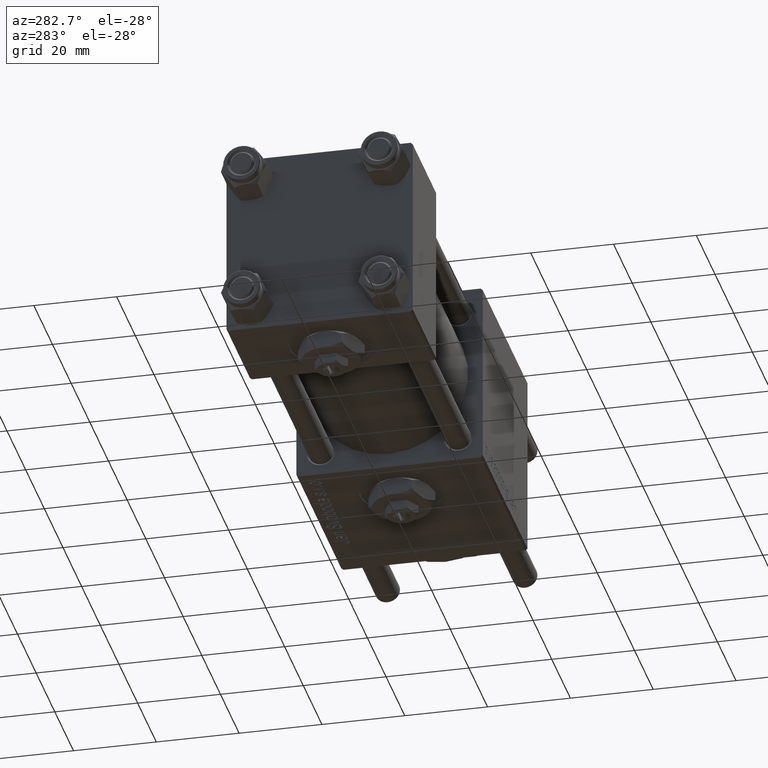
[diagram: clean part render]
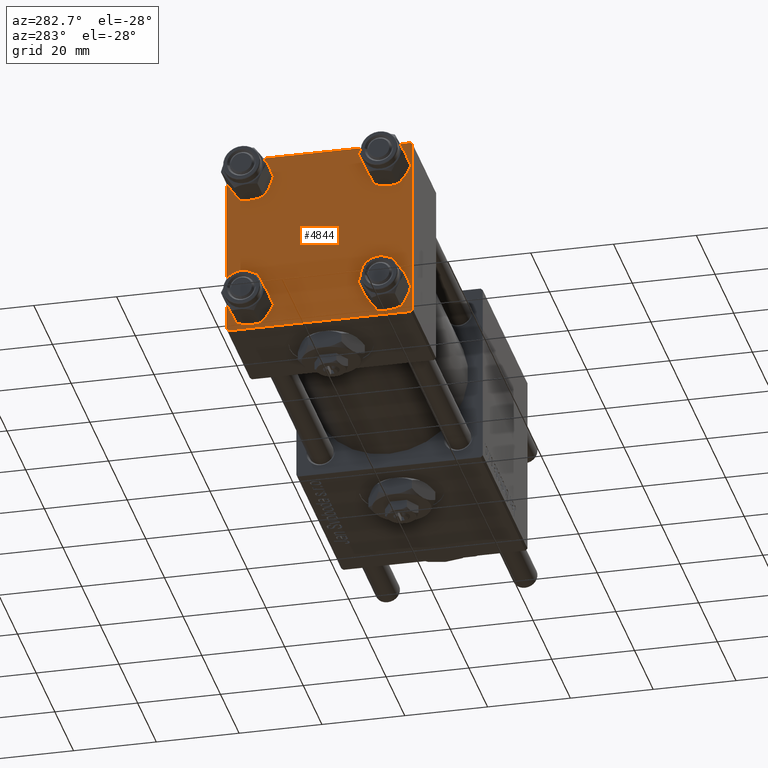
[diagram: same view with one face highlighted and labeled with its STEP entity id]
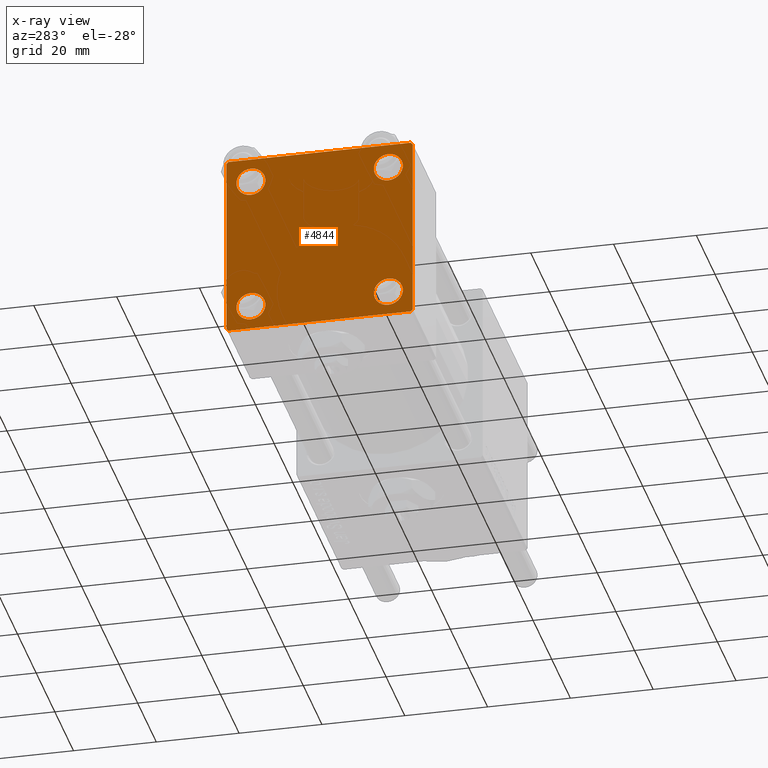
[diagram: x-ray of the same camera — body ghosted, the highlighted face saturated]
A machine part, auxiliary view. The second image highlights one B-rep face of the part: STEP entity #4844.
The next image is the same camera in x-ray: the body ghosted, the highlighted face saturated — about 0% of this face is hidden behind the body in this view.
In plain terms, the highlighted planar face has unit normal (-1, 0, 0).
Its self-contained STEP definition (entity closure, byte-faithful):
#525 = VECTOR ( 'NONE', #51035, 1000.000000000000000 ) ;
#651 = CARTESIAN_POINT ( 'NONE',  ( 0.000000000000000000, 21.99999999999999289, -22.49999999999999645 ) ) ;
#687 = CARTESIAN_POINT ( 'NONE',  ( 0.000000000000000000, 21.99999999999999289, 22.50000000000000355 ) ) ;
#1084 = VERTEX_POINT ( 'NONE', #32262 ) ;
#1396 = CARTESIAN_POINT ( 'NONE',  ( 0.000000000000000000, 22.50000000000000000, 21.99999999999999645 ) ) ;
#1397 = VECTOR ( 'NONE', #4981, 1000.000000000000000 ) ;
#1418 = ORIENTED_EDGE ( 'NONE', *, *, #38403, .F. ) ;
#1971 = VECTOR ( 'NONE', #26684, 1000.000000000000114 ) ;
#2387 = DIRECTION ( 'NONE',  ( 0.000000000000000000, -0.7071067811865426878, 0.7071067811865524577 ) ) ;
#2950 = DIRECTION ( 'NONE',  ( 1.000000000000000000, -0.000000000000000000, 0.000000000000000000 ) ) ;
#3062 = DIRECTION ( 'NONE',  ( 1.000000000000000000, -0.000000000000000000, 0.000000000000000000 ) ) ;
#3696 = ORIENTED_EDGE ( 'NONE', *, *, #21230, .T. ) ;
#3710 = CARTESIAN_POINT ( 'NONE',  ( 0.000000000000000000, 22.50000000000000000, -21.99999999999996803 ) ) ;
#4570 = DIRECTION ( 'NONE',  ( 1.000000000000000000, -0.000000000000000000, 0.000000000000000000 ) ) ;
#4844 = ADVANCED_FACE ( 'NONE', ( #7138, #39537, #26425, #38663, #8008 ), #57113, .T. ) ;
#4902 = EDGE_CURVE ( 'NONE', #49674, #58746, #52650, .T. ) ;
#4981 = DIRECTION ( 'NONE',  ( 0.000000000000000000, 0.000000000000000000, -1.000000000000000000 ) ) ;
#5177 = EDGE_LOOP ( 'NONE', ( #49612, #55496 ) ) ;
#5236 = CARTESIAN_POINT ( 'NONE',  ( 0.000000000000000000, 22.50000000000000000, 22.50000000000000355 ) ) ;
#5449 = VECTOR ( 'NONE', #29704, 1000.000000000000000 ) ;
#6813 = EDGE_CURVE ( 'NONE', #20612, #49674, #37069, .T. ) ;
#7138 = FACE_BOUND ( 'NONE', #18347, .T. ) ;
#7297 = LINE ( 'NONE', #25422, #55432 ) ;
#7694 = CARTESIAN_POINT ( 'NONE',  ( 0.000000000000000000, 16.59999999999999787, 16.60000000000000497 ) ) ;
#8008 = FACE_OUTER_BOUND ( 'NONE', #52908, .T. ) ;
#10006 = DIRECTION ( 'NONE',  ( 0.000000000000000000, -1.000000000000000000, -2.312964634635742957E-16 ) ) ;
#11111 = AXIS2_PLACEMENT_3D ( 'NONE', #7694, #2950, #30290 ) ;
#11423 = CARTESIAN_POINT ( 'NONE',  ( 0.000000000000000000, -16.59999999999999076, 16.60000000000000853 ) ) ;
#11575 = LINE ( 'NONE', #21070, #5449 ) ;
#11682 = ORIENTED_EDGE ( 'NONE', *, *, #4902, .T. ) ;
#12722 = CARTESIAN_POINT ( 'NONE',  ( 0.000000000000000000, 22.24999999999999645, 22.24999999999999645 ) ) ;
#12912 = AXIS2_PLACEMENT_3D ( 'NONE', #11423, #33425, #24500 ) ;
#12926 = ORIENTED_EDGE ( 'NONE', *, *, #6813, .T. ) ;
#13475 = LINE ( 'NONE', #23266, #42289 ) ;
#13598 = LINE ( 'NONE', #12722, #1971 ) ;
#15344 = CARTESIAN_POINT ( 'NONE',  ( 0.000000000000000000, 22.50000000000000000, -22.49999999999999645 ) ) ;
#16117 = AXIS2_PLACEMENT_3D ( 'NONE', #52741, #3062, #22062 ) ;
#16576 = VERTEX_POINT ( 'NONE', #56293 ) ;
#16873 = VERTEX_POINT ( 'NONE', #43999 ) ;
#18347 = EDGE_LOOP ( 'NONE', ( #24317, #32161 ) ) ;
#18355 = VERTEX_POINT ( 'NONE', #3710 ) ;
#18745 = EDGE_CURVE ( 'NONE', #50341, #54932, #34191, .T. ) ;
#19090 = DIRECTION ( 'NONE',  ( 0.000000000000000000, 0.000000000000000000, 1.000000000000000000 ) ) ;
#19420 = AXIS2_PLACEMENT_3D ( 'NONE', #21670, #57401, #34772 ) ;
#20225 = CARTESIAN_POINT ( 'NONE',  ( 0.000000000000000000, -16.59999999999999076, 16.60000000000000853 ) ) ;
#20612 = VERTEX_POINT ( 'NONE', #651 ) ;
#21046 = EDGE_CURVE ( 'NONE', #52537, #39398, #13598, .T. ) ;
#21070 = CARTESIAN_POINT ( 'NONE',  ( 0.000000000000000000, 22.50000000000000000, 22.50000000000000355 ) ) ;
#21112 = VERTEX_POINT ( 'NONE', #23976 ) ;
#21230 = EDGE_CURVE ( 'NONE', #41102, #1084, #28533, .T. ) ;
#21670 = CARTESIAN_POINT ( 'NONE',  ( 0.000000000000000000, 0.000000000000000000, 0.000000000000000000 ) ) ;
#22062 = DIRECTION ( 'NONE',  ( 0.000000000000000000, 0.000000000000000000, 1.000000000000000000 ) ) ;
#22160 = DIRECTION ( 'NONE',  ( 1.000000000000000000, -0.000000000000000000, 0.000000000000000000 ) ) ;
#22514 = CARTESIAN_POINT ( 'NONE',  ( 0.000000000000000000, 16.59999999999999787, 20.10000000000000142 ) ) ;
#22772 = ORIENTED_EDGE ( 'NONE', *, *, #21046, .T. ) ;
#23266 = CARTESIAN_POINT ( 'NONE',  ( 0.000000000000000000, 22.25000000000014566, -22.24999999999984013 ) ) ;
#23976 = CARTESIAN_POINT ( 'NONE',  ( 0.000000000000000000, -16.59999999999999076, 20.10000000000000853 ) ) ;
#24178 = VECTOR ( 'NONE', #2387, 1000.000000000000000 ) ;
#24317 = ORIENTED_EDGE ( 'NONE', *, *, #42295, .T. ) ;
#24381 = CIRCLE ( 'NONE', #11111, 3.499999999999996003 ) ;
#24500 = DIRECTION ( 'NONE',  ( 0.000000000000000000, 0.000000000000000000, 1.000000000000000000 ) ) ;
#24770 = AXIS2_PLACEMENT_3D ( 'NONE', #40617, #22160, #30792 ) ;
#25422 = CARTESIAN_POINT ( 'NONE',  ( -0.000000000000000000, -22.24999999999984013, 22.25000000000015277 ) ) ;
#25502 = EDGE_CURVE ( 'NONE', #39793, #26314, #36272, .T. ) ;
#26016 = VERTEX_POINT ( 'NONE', #28338 ) ;
#26314 = VERTEX_POINT ( 'NONE', #46354 ) ;
#26425 = FACE_BOUND ( 'NONE', #49299, .T. ) ;
#26684 = DIRECTION ( 'NONE',  ( 0.000000000000000000, 0.7071067811865474617, -0.7071067811865474617 ) ) ;
#27241 = EDGE_LOOP ( 'NONE', ( #3696, #32067 ) ) ;
#27884 = AXIS2_PLACEMENT_3D ( 'NONE', #32492, #45605, #19090 ) ;
#27918 = ORIENTED_EDGE ( 'NONE', *, *, #55477, .T. ) ;
#28338 = CARTESIAN_POINT ( 'NONE',  ( 0.000000000000000000, -21.99999999999997868, 22.50000000000000000 ) ) ;
#28408 = LINE ( 'NONE', #5236, #525 ) ;
#28533 = CIRCLE ( 'NONE', #24770, 3.499999999999996003 ) ;
#29364 = DIRECTION ( 'NONE',  ( 1.000000000000000000, -0.000000000000000000, 0.000000000000000000 ) ) ;
#29460 = EDGE_CURVE ( 'NONE', #16873, #26016, #7297, .T. ) ;
#29704 = DIRECTION ( 'NONE',  ( 0.000000000000000000, 0.000000000000000000, -1.000000000000000000 ) ) ;
#30290 = DIRECTION ( 'NONE',  ( 0.000000000000000000, 0.000000000000000000, 1.000000000000000000 ) ) ;
#30792 = DIRECTION ( 'NONE',  ( 0.000000000000000000, 0.000000000000000000, 1.000000000000000000 ) ) ;
#30899 = CARTESIAN_POINT ( 'NONE',  ( 0.000000000000000000, -22.25000000000014566, -22.24999999999984013 ) ) ;
#31110 = EDGE_CURVE ( 'NONE', #26314, #39793, #54547, .T. ) ;
#31138 = AXIS2_PLACEMENT_3D ( 'NONE', #58722, #4570, #53654 ) ;
#32067 = ORIENTED_EDGE ( 'NONE', *, *, #51058, .T. ) ;
#32161 = ORIENTED_EDGE ( 'NONE', *, *, #50216, .T. ) ;
#32262 = CARTESIAN_POINT ( 'NONE',  ( 0.000000000000000000, 16.59999999999999787, 13.10000000000000675 ) ) ;
#32492 = CARTESIAN_POINT ( 'NONE',  ( 0.000000000000000000, -16.59999999999999076, -16.60000000000000853 ) ) ;
#32620 = LINE ( 'NONE', #45443, #1397 ) ;
#33034 = CARTESIAN_POINT ( 'NONE',  ( 0.000000000000000000, 16.59999999999999787, -20.10000000000000142 ) ) ;
#33425 = DIRECTION ( 'NONE',  ( 1.000000000000000000, -0.000000000000000000, 0.000000000000000000 ) ) ;
#33460 = ORIENTED_EDGE ( 'NONE', *, *, #54074, .T. ) ;
#33526 = DIRECTION ( 'NONE',  ( 0.000000000000000000, 0.000000000000000000, 1.000000000000000000 ) ) ;
#34191 = CIRCLE ( 'NONE', #16117, 3.499999999999996003 ) ;
#34772 = DIRECTION ( 'NONE',  ( -0.000000000000000000, 0.000000000000000000, 1.000000000000000000 ) ) ;
#36272 = CIRCLE ( 'NONE', #58158, 3.499999999999996003 ) ;
#37069 = LINE ( 'NONE', #15344, #53666 ) ;
#38403 = EDGE_CURVE ( 'NONE', #16873, #58746, #32620, .T. ) ;
#38663 = FACE_BOUND ( 'NONE', #27241, .T. ) ;
#39008 = EDGE_CURVE ( 'NONE', #18355, #20612, #13475, .T. ) ;
#39101 = ORIENTED_EDGE ( 'NONE', *, *, #18745, .T. ) ;
#39398 = VERTEX_POINT ( 'NONE', #1396 ) ;
#39530 = CIRCLE ( 'NONE', #12912, 3.499999999999996003 ) ;
#39537 = FACE_BOUND ( 'NONE', #5177, .T. ) ;
#39793 = VERTEX_POINT ( 'NONE', #55126 ) ;
#40617 = CARTESIAN_POINT ( 'NONE',  ( 0.000000000000000000, 16.59999999999999787, 16.60000000000000497 ) ) ;
#40666 = CIRCLE ( 'NONE', #31138, 3.499999999999996003 ) ;
#41102 = VERTEX_POINT ( 'NONE', #22514 ) ;
#42289 = VECTOR ( 'NONE', #44713, 1000.000000000000000 ) ;
#42295 = EDGE_CURVE ( 'NONE', #21112, #16576, #39530, .T. ) ;
#42399 = DIRECTION ( 'NONE',  ( -0.000000000000000000, 0.7071067811865525687, 0.7071067811865425767 ) ) ;
#43702 = CARTESIAN_POINT ( 'NONE',  ( 0.000000000000000000, -22.50000000000000000, -21.99999999999997158 ) ) ;
#43999 = CARTESIAN_POINT ( 'NONE',  ( 0.000000000000000000, -22.50000000000000000, 22.00000000000000000 ) ) ;
#44255 = AXIS2_PLACEMENT_3D ( 'NONE', #20225, #55955, #47310 ) ;
#44320 = ORIENTED_EDGE ( 'NONE', *, *, #39008, .T. ) ;
#44713 = DIRECTION ( 'NONE',  ( -0.000000000000000000, -0.7071067811865426878, -0.7071067811865524577 ) ) ;
#45443 = CARTESIAN_POINT ( 'NONE',  ( 0.000000000000000000, -22.50000000000000000, 22.50000000000000000 ) ) ;
#45605 = DIRECTION ( 'NONE',  ( 1.000000000000000000, -0.000000000000000000, 0.000000000000000000 ) ) ;
#46354 = CARTESIAN_POINT ( 'NONE',  ( 0.000000000000000000, -16.59999999999999076, -20.10000000000000497 ) ) ;
#47310 = DIRECTION ( 'NONE',  ( 0.000000000000000000, 0.000000000000000000, 1.000000000000000000 ) ) ;
#47520 = CARTESIAN_POINT ( 'NONE',  ( 0.000000000000000000, -16.59999999999999076, -16.60000000000000853 ) ) ;
#48860 = ORIENTED_EDGE ( 'NONE', *, *, #49641, .F. ) ;
#49154 = ORIENTED_EDGE ( 'NONE', *, *, #29460, .T. ) ;
#49299 = EDGE_LOOP ( 'NONE', ( #27918, #39101 ) ) ;
#49612 = ORIENTED_EDGE ( 'NONE', *, *, #25502, .T. ) ;
#49641 = EDGE_CURVE ( 'NONE', #52537, #26016, #28408, .T. ) ;
#49674 = VERTEX_POINT ( 'NONE', #50467 ) ;
#50216 = EDGE_CURVE ( 'NONE', #16576, #21112, #54768, .T. ) ;
#50341 = VERTEX_POINT ( 'NONE', #33034 ) ;
#50467 = CARTESIAN_POINT ( 'NONE',  ( 0.000000000000000000, -21.99999999999997158, -22.50000000000000711 ) ) ;
#51035 = DIRECTION ( 'NONE',  ( 0.000000000000000000, -1.000000000000000000, -7.709882115452476934E-17 ) ) ;
#51058 = EDGE_CURVE ( 'NONE', #1084, #41102, #24381, .T. ) ;
#52537 = VERTEX_POINT ( 'NONE', #687 ) ;
#52650 = LINE ( 'NONE', #30899, #24178 ) ;
#52741 = CARTESIAN_POINT ( 'NONE',  ( 0.000000000000000000, 16.59999999999999787, -16.60000000000000497 ) ) ;
#52908 = EDGE_LOOP ( 'NONE', ( #33460, #44320, #12926, #11682, #1418, #49154, #48860, #22772 ) ) ;
#53654 = DIRECTION ( 'NONE',  ( 0.000000000000000000, 0.000000000000000000, 1.000000000000000000 ) ) ;
#53666 = VECTOR ( 'NONE', #10006, 1000.000000000000000 ) ;
#54074 = EDGE_CURVE ( 'NONE', #39398, #18355, #11575, .T. ) ;
#54547 = CIRCLE ( 'NONE', #27884, 3.499999999999996003 ) ;
#54682 = CARTESIAN_POINT ( 'NONE',  ( 0.000000000000000000, 16.59999999999999787, -13.10000000000000675 ) ) ;
#54768 = CIRCLE ( 'NONE', #44255, 3.499999999999996003 ) ;
#54932 = VERTEX_POINT ( 'NONE', #54682 ) ;
#55126 = CARTESIAN_POINT ( 'NONE',  ( 0.000000000000000000, -16.59999999999999076, -13.10000000000001030 ) ) ;
#55432 = VECTOR ( 'NONE', #42399, 999.9999999999998863 ) ;
#55477 = EDGE_CURVE ( 'NONE', #54932, #50341, #40666, .T. ) ;
#55496 = ORIENTED_EDGE ( 'NONE', *, *, #31110, .T. ) ;
#55955 = DIRECTION ( 'NONE',  ( 1.000000000000000000, -0.000000000000000000, 0.000000000000000000 ) ) ;
#56293 = CARTESIAN_POINT ( 'NONE',  ( 0.000000000000000000, -16.59999999999999076, 13.10000000000001030 ) ) ;
#57113 = PLANE ( 'NONE',  #19420 ) ;
#57401 = DIRECTION ( 'NONE',  ( -1.000000000000000000, 0.000000000000000000, -0.000000000000000000 ) ) ;
#58158 = AXIS2_PLACEMENT_3D ( 'NONE', #47520, #29364, #33526 ) ;
#58722 = CARTESIAN_POINT ( 'NONE',  ( 0.000000000000000000, 16.59999999999999787, -16.60000000000000497 ) ) ;
#58746 = VERTEX_POINT ( 'NONE', #43702 ) ;